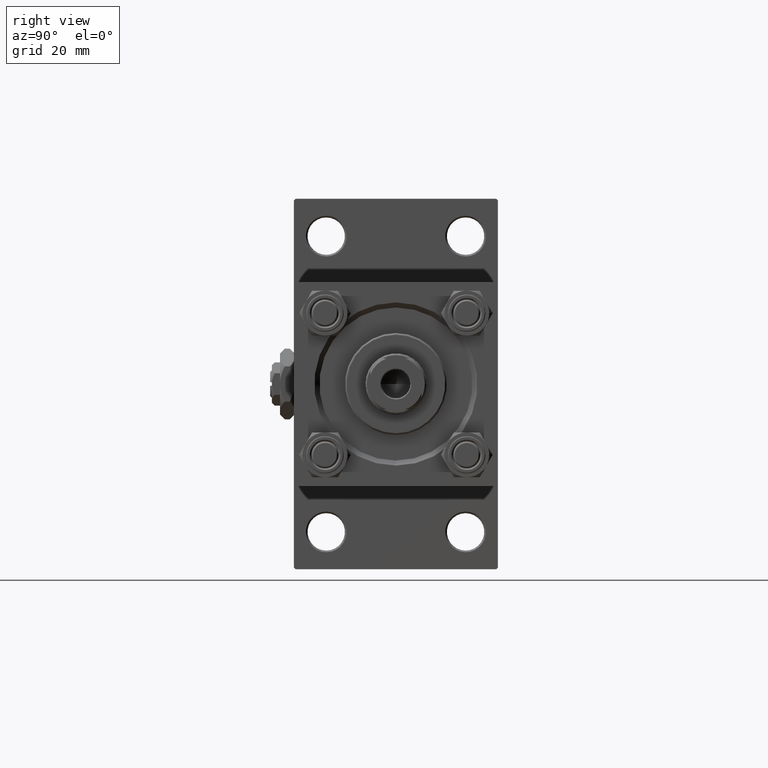
[diagram: clean part render]
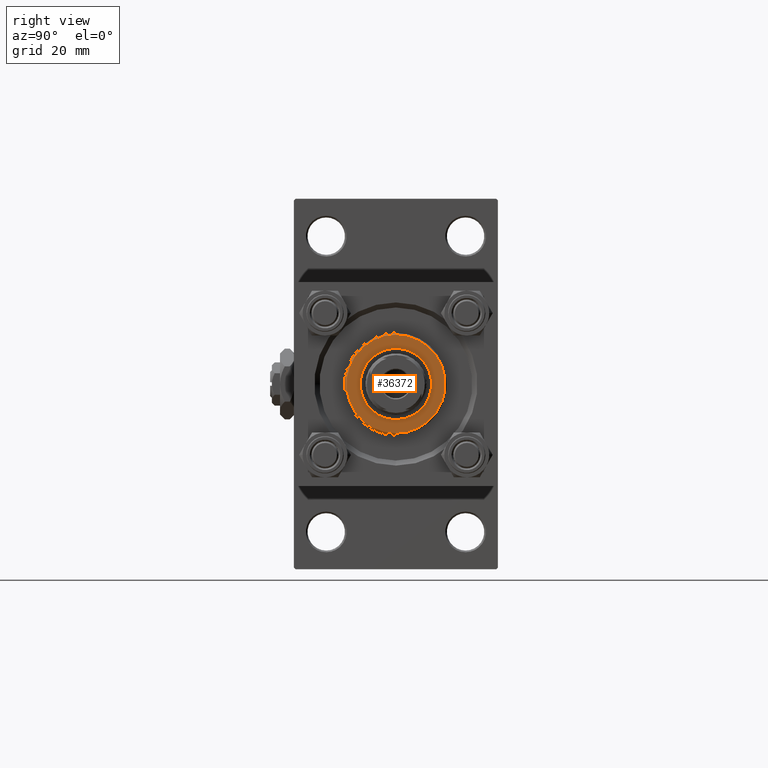
[diagram: same view with one face highlighted and labeled with its STEP entity id]
A machine part, right view. The second image highlights one B-rep face of the part: STEP entity #36372.
In plain terms, the highlighted planar face has unit normal (1, 0, 0).
Its self-contained STEP definition (entity closure, byte-faithful):
#367 = VERTEX_POINT ( 'NONE', #46752 ) ;
#2197 = DIRECTION ( 'NONE',  ( 0.000000000000000000, 0.000000000000000000, 1.000000000000000000 ) ) ;
#3555 = EDGE_LOOP ( 'NONE', ( #43232, #41189 ) ) ;
#4535 = ORIENTED_EDGE ( 'NONE', *, *, #51082, .T. ) ;
#6586 = DIRECTION ( 'NONE',  ( 1.000000000000000000, 0.000000000000000000, -0.000000000000000000 ) ) ;
#6964 = AXIS2_PLACEMENT_3D ( 'NONE', #31061, #43688, #47646 ) ;
#7039 = DIRECTION ( 'NONE',  ( 1.000000000000000000, 0.000000000000000000, 0.000000000000000000 ) ) ;
#12019 = CIRCLE ( 'NONE', #6964, 14.50000000000001776 ) ;
#12356 = CARTESIAN_POINT ( 'NONE',  ( 0.000000000000000000, 0.000000000000000000, 36.69999999999999574 ) ) ;
#13895 = CARTESIAN_POINT ( 'NONE',  ( 0.000000000000000000, 0.000000000000000000, 36.69999999999999574 ) ) ;
#14495 = FACE_OUTER_BOUND ( 'NONE', #35361, .T. ) ;
#14783 = EDGE_CURVE ( 'NONE', #24657, #367, #33114, .T. ) ;
#18273 = DIRECTION ( 'NONE',  ( 1.000000000000000000, 0.000000000000000000, 0.000000000000000000 ) ) ;
#18971 = DIRECTION ( 'NONE',  ( 0.000000000000000000, 0.000000000000000000, 1.000000000000000000 ) ) ;
#19041 = CARTESIAN_POINT ( 'NONE',  ( 0.000000000000000000, 0.000000000000000000, 36.69999999999999574 ) ) ;
#19212 = AXIS2_PLACEMENT_3D ( 'NONE', #13895, #47320, #7039 ) ;
#19456 = AXIS2_PLACEMENT_3D ( 'NONE', #19041, #2197, #18273 ) ;
#24657 = VERTEX_POINT ( 'NONE', #33815 ) ;
#25312 = ORIENTED_EDGE ( 'NONE', *, *, #27751, .T. ) ;
#27751 = EDGE_CURVE ( 'NONE', #48044, #33061, #41029, .T. ) ;
#28935 = DIRECTION ( 'NONE',  ( 1.000000000000000000, 0.000000000000000000, 0.000000000000000000 ) ) ;
#31061 = CARTESIAN_POINT ( 'NONE',  ( 0.000000000000000000, 0.000000000000000000, 36.69999999999999574 ) ) ;
#31365 = AXIS2_PLACEMENT_3D ( 'NONE', #42650, #18971, #6586 ) ;
#33061 = VERTEX_POINT ( 'NONE', #40237 ) ;
#33114 = CIRCLE ( 'NONE', #37324, 10.50000000000000000 ) ;
#33127 = DIRECTION ( 'NONE',  ( 0.000000000000000000, 0.000000000000000000, 1.000000000000000000 ) ) ;
#33815 = CARTESIAN_POINT ( 'NONE',  ( -10.50000000000000000, 1.285879139104720831E-15, 36.69999999999999574 ) ) ;
#35361 = EDGE_LOOP ( 'NONE', ( #4535, #25312 ) ) ;
#36372 = ADVANCED_FACE ( 'NONE', ( #39489, #14495 ), #43696, .T. ) ;
#37324 = AXIS2_PLACEMENT_3D ( 'NONE', #12356, #33127, #28935 ) ;
#37753 = CARTESIAN_POINT ( 'NONE',  ( 14.50000000000001776, 1.806354028742346985E-15, 36.69999999999999574 ) ) ;
#39489 = FACE_BOUND ( 'NONE', #3555, .T. ) ;
#40237 = CARTESIAN_POINT ( 'NONE',  ( -14.50000000000001776, 0.000000000000000000, 36.69999999999999574 ) ) ;
#41029 = CIRCLE ( 'NONE', #19212, 14.50000000000001776 ) ;
#41189 = ORIENTED_EDGE ( 'NONE', *, *, #14783, .F. ) ;
#42650 = CARTESIAN_POINT ( 'NONE',  ( 0.000000000000000000, 0.000000000000000000, 36.69999999999999574 ) ) ;
#43232 = ORIENTED_EDGE ( 'NONE', *, *, #47287, .F. ) ;
#43688 = DIRECTION ( 'NONE',  ( 0.000000000000000000, 0.000000000000000000, 1.000000000000000000 ) ) ;
#43696 = PLANE ( 'NONE',  #31365 ) ;
#46752 = CARTESIAN_POINT ( 'NONE',  ( 10.50000000000000000, 0.000000000000000000, 36.69999999999999574 ) ) ;
#47287 = EDGE_CURVE ( 'NONE', #367, #24657, #50577, .T. ) ;
#47320 = DIRECTION ( 'NONE',  ( 0.000000000000000000, 0.000000000000000000, 1.000000000000000000 ) ) ;
#47646 = DIRECTION ( 'NONE',  ( 1.000000000000000000, 0.000000000000000000, 0.000000000000000000 ) ) ;
#48044 = VERTEX_POINT ( 'NONE', #37753 ) ;
#50577 = CIRCLE ( 'NONE', #19456, 10.50000000000000000 ) ;
#51082 = EDGE_CURVE ( 'NONE', #33061, #48044, #12019, .T. ) ;